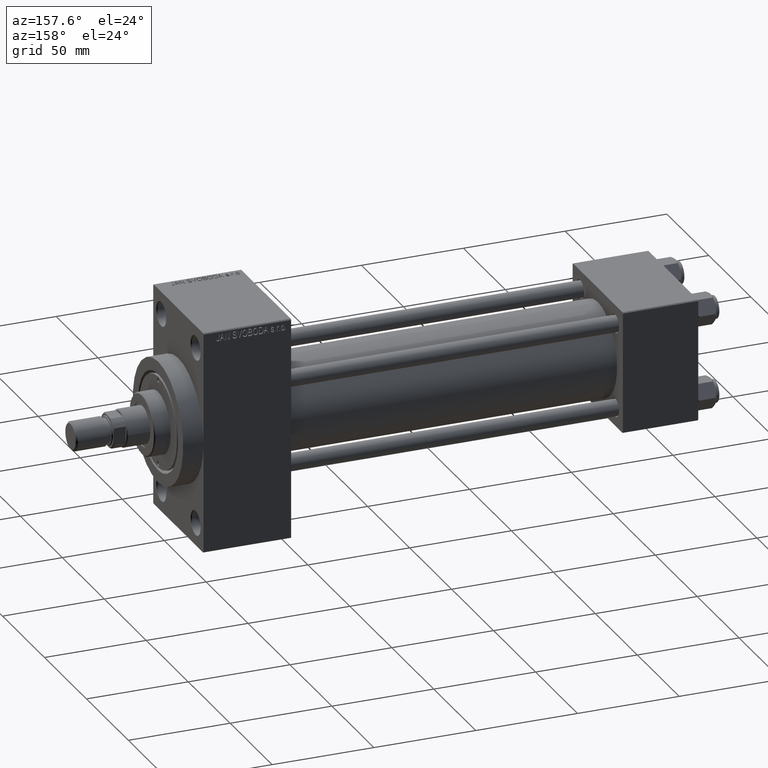
[diagram: clean part render]
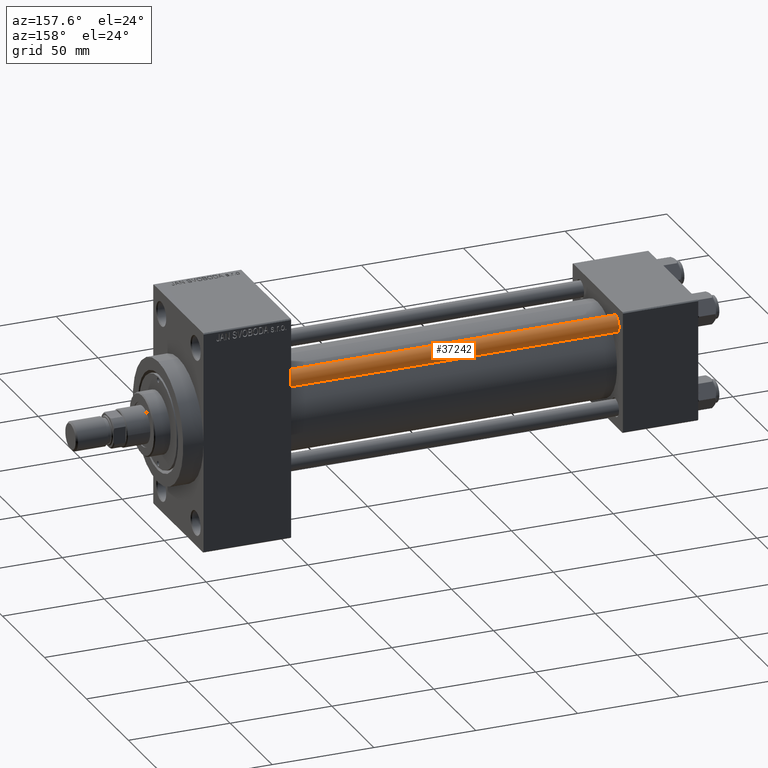
[diagram: same view with one face highlighted and labeled with its STEP entity id]
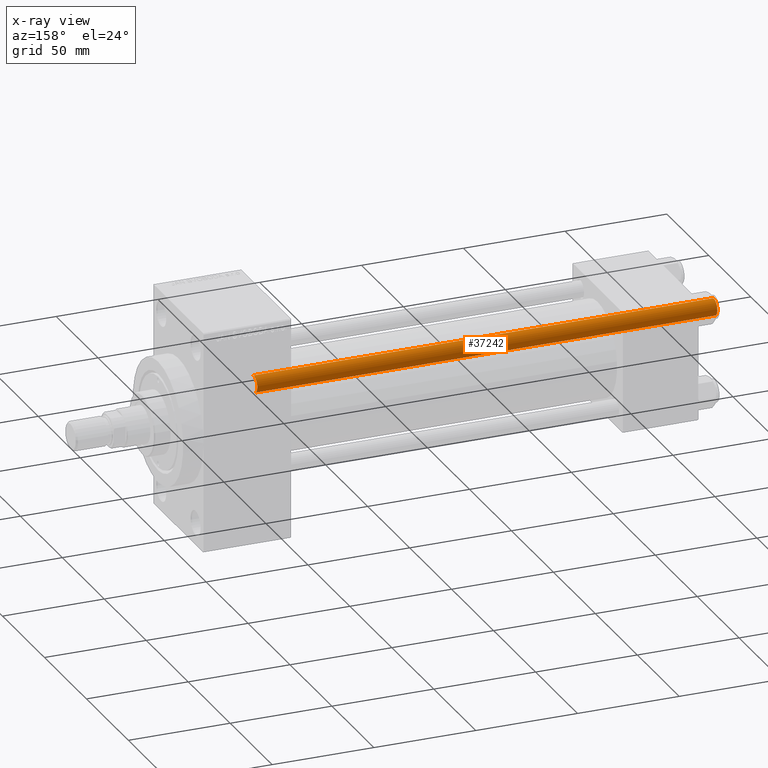
[diagram: x-ray of the same camera — body ghosted, the highlighted face saturated]
A machine part, auxiliary view. The second image highlights one B-rep face of the part: STEP entity #37242.
The next image is the same camera in x-ray: the body ghosted, the highlighted face saturated — about 0% of this face is hidden behind the body in this view.
In plain terms, the highlighted cylindrical surface (edge-blend (fillet) strip) has radius 4 mm, axis along (-1, -0, 0).
Its self-contained STEP definition (entity closure, byte-faithful):
#59 = CARTESIAN_POINT ( 'NONE',  ( 0.000000000000000000, 0.000000000000000000, 0.5000000000002224887 ) ) ;
#1972 = DIRECTION ( 'NONE',  ( -1.000000000000000000, 0.000000000000000000, 0.000000000000000000 ) ) ;
#2167 = CARTESIAN_POINT ( 'NONE',  ( 4.000000000000000000, 4.898587196589411843E-16, 0.5000000000002224887 ) ) ;
#6328 = AXIS2_PLACEMENT_3D ( 'NONE', #9244, #34951, #1972 ) ;
#7329 = DIRECTION ( 'NONE',  ( 1.000000000000000000, 0.000000000000000000, 0.000000000000000000 ) ) ;
#7696 = ORIENTED_EDGE ( 'NONE', *, *, #41365, .T. ) ;
#7805 = DIRECTION ( 'NONE',  ( -0.000000000000000000, -0.000000000000000000, 1.000000000000000000 ) ) ;
#9244 = CARTESIAN_POINT ( 'NONE',  ( 0.000000000000000000, 0.000000000000000000, 227.0000000000000000 ) ) ;
#10364 = VECTOR ( 'NONE', #23571, 1000.000000000000000 ) ;
#11612 = VERTEX_POINT ( 'NONE', #14086 ) ;
#11882 = CARTESIAN_POINT ( 'NONE',  ( -4.000000000000000000, 0.000000000000000000, 227.0000000000000000 ) ) ;
#12366 = LINE ( 'NONE', #11882, #21179 ) ;
#14086 = CARTESIAN_POINT ( 'NONE',  ( 4.000000000000000000, 4.898587196589411843E-16, 226.5000000000001421 ) ) ;
#14374 = VERTEX_POINT ( 'NONE', #18737 ) ;
#15570 = EDGE_CURVE ( 'NONE', #15828, #14374, #12366, .T. ) ;
#15581 = DIRECTION ( 'NONE',  ( 1.000000000000000000, 0.000000000000000000, 0.000000000000000000 ) ) ;
#15607 = VERTEX_POINT ( 'NONE', #2167 ) ;
#15828 = VERTEX_POINT ( 'NONE', #45979 ) ;
#18721 = CARTESIAN_POINT ( 'NONE',  ( 0.000000000000000000, 0.000000000000000000, 226.5000000000001421 ) ) ;
#18737 = CARTESIAN_POINT ( 'NONE',  ( -4.000000000000000000, 0.000000000000000000, 0.5000000000002224887 ) ) ;
#21179 = VECTOR ( 'NONE', #27415, 1000.000000000000000 ) ;
#23571 = DIRECTION ( 'NONE',  ( -0.000000000000000000, -0.000000000000000000, -1.000000000000000000 ) ) ;
#24216 = CIRCLE ( 'NONE', #30385, 4.000000000000000000 ) ;
#27415 = DIRECTION ( 'NONE',  ( -0.000000000000000000, -0.000000000000000000, -1.000000000000000000 ) ) ;
#27454 = FACE_OUTER_BOUND ( 'NONE', #32185, .T. ) ;
#30385 = AXIS2_PLACEMENT_3D ( 'NONE', #18721, #32831, #7329 ) ;
#32185 = EDGE_LOOP ( 'NONE', ( #38824, #7696, #32493, #34617 ) ) ;
#32493 = ORIENTED_EDGE ( 'NONE', *, *, #43194, .T. ) ;
#32831 = DIRECTION ( 'NONE',  ( 0.000000000000000000, 0.000000000000000000, -1.000000000000000000 ) ) ;
#34617 = ORIENTED_EDGE ( 'NONE', *, *, #15570, .F. ) ;
#34697 = LINE ( 'NONE', #41237, #10364 ) ;
#34951 = DIRECTION ( 'NONE',  ( -0.000000000000000000, -0.000000000000000000, -1.000000000000000000 ) ) ;
#37242 = ADVANCED_FACE ( 'NONE', ( #27454 ), #45340, .T. ) ;
#37502 = AXIS2_PLACEMENT_3D ( 'NONE', #59, #7805, #15581 ) ;
#38824 = ORIENTED_EDGE ( 'NONE', *, *, #39713, .T. ) ;
#39713 = EDGE_CURVE ( 'NONE', #15828, #11612, #24216, .T. ) ;
#41237 = CARTESIAN_POINT ( 'NONE',  ( 4.000000000000000000, 4.898587196589411843E-16, 227.0000000000000000 ) ) ;
#41365 = EDGE_CURVE ( 'NONE', #11612, #15607, #34697, .T. ) ;
#43194 = EDGE_CURVE ( 'NONE', #15607, #14374, #44426, .T. ) ;
#44426 = CIRCLE ( 'NONE', #37502, 4.000000000000000000 ) ;
#45340 = CYLINDRICAL_SURFACE ( 'NONE', #6328, 4.000000000000000000 ) ;
#45979 = CARTESIAN_POINT ( 'NONE',  ( -4.000000000000000000, 0.000000000000000000, 226.5000000000001421 ) ) ;